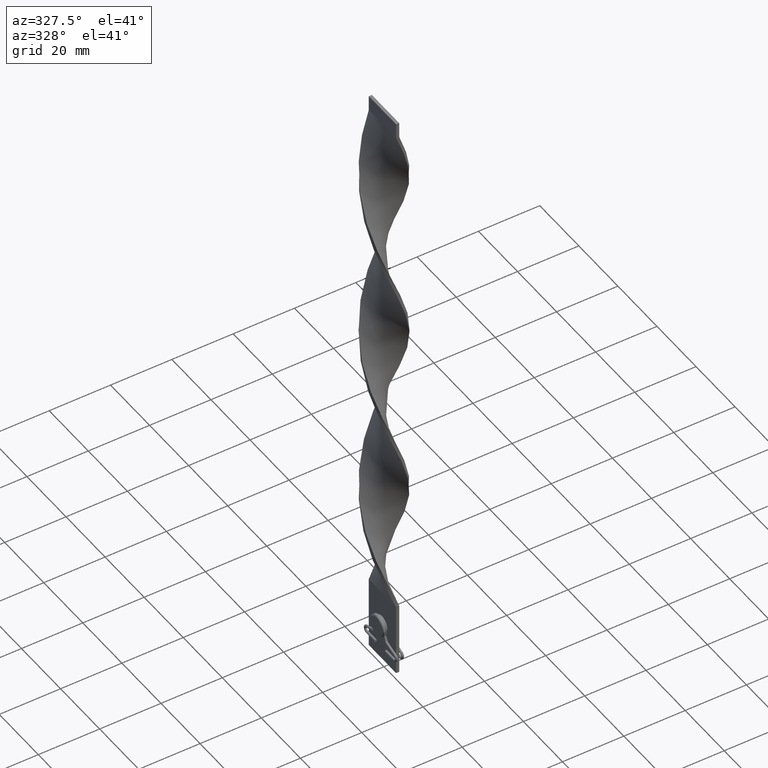
[diagram: clean part render]
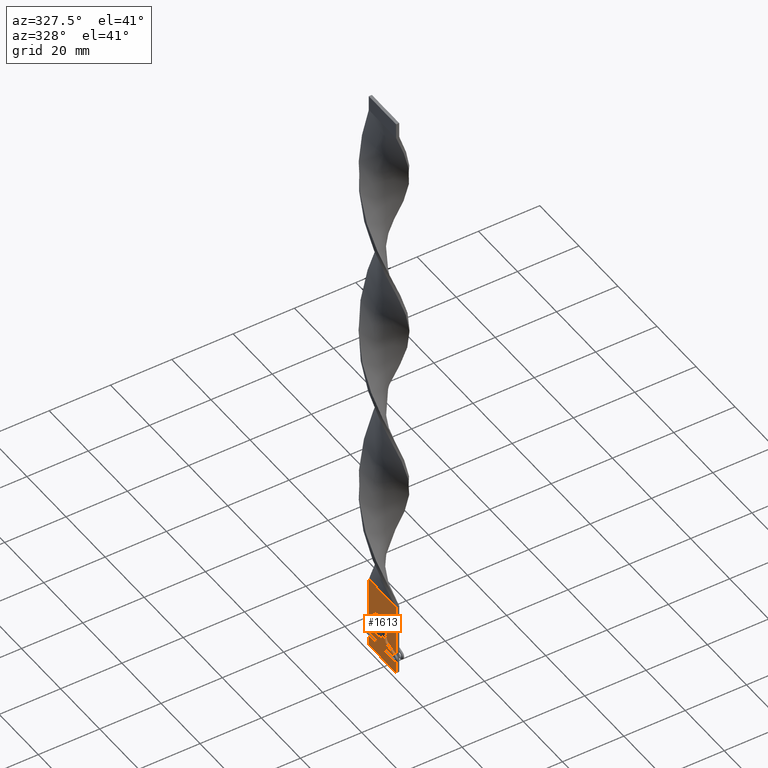
[diagram: same view with one face highlighted and labeled with its STEP entity id]
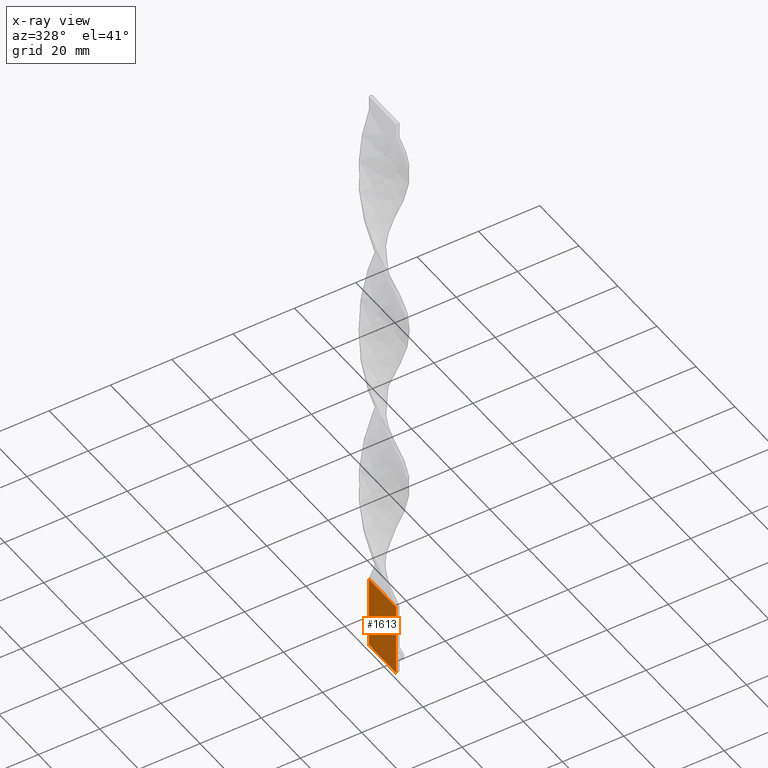
[diagram: x-ray of the same camera — body ghosted, the highlighted face saturated]
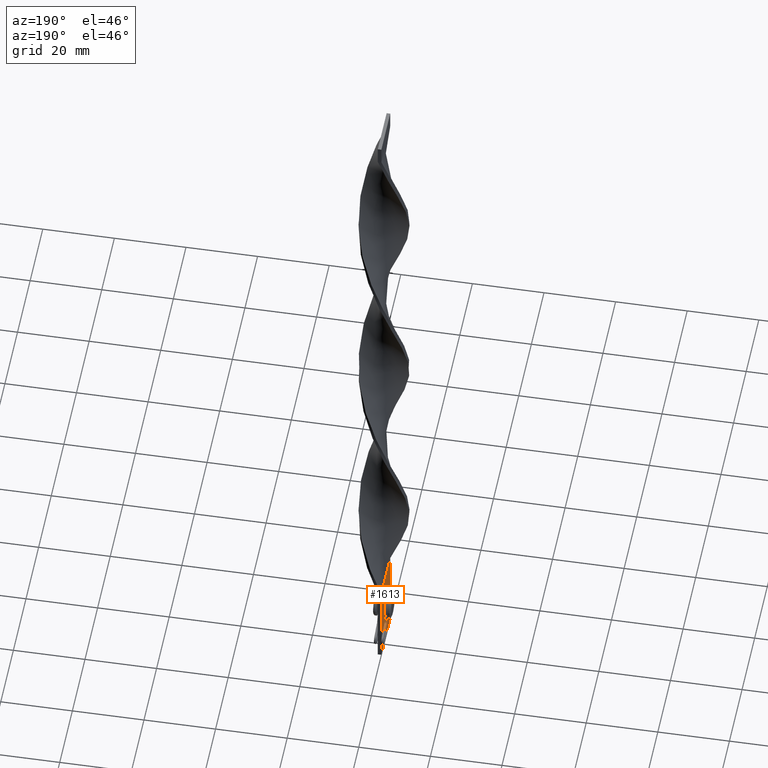
[diagram: same view with one face highlighted and labeled with its STEP entity id]
A machine part, auxiliary view. The second image highlights one B-rep face of the part: STEP entity #1613.
The next image is the same camera in x-ray: the body ghosted, the highlighted face saturated — about 0% of this face is hidden behind the body in this view.
A second angle (auxiliary view) of the same face is appended — the face is thin or edge-on in the first view.
In plain terms, the highlighted planar face has unit normal (1, 0, -0).
Its self-contained STEP definition (entity closure, byte-faithful):
#39 = AXIS2_PLACEMENT_3D ( 'NONE', #3506, #1743, #2853 ) ;
#214 = CARTESIAN_POINT ( 'NONE',  ( -0.5000000000000007772, 7.000000000000000888, 0.000000000000000000 ) ) ;
#235 = CARTESIAN_POINT ( 'NONE',  ( -0.5000000000000007772, 7.000000000000000888, 0.000000000000000000 ) ) ;
#438 = LINE ( 'NONE', #2571, #1664 ) ;
#443 = EDGE_LOOP ( 'NONE', ( #597, #3119 ) ) ;
#525 = EDGE_CURVE ( 'NONE', #1611, #3564, #2703, .T. ) ;
#597 = ORIENTED_EDGE ( 'NONE', *, *, #525, .T. ) ;
#1280 = DIRECTION ( 'NONE',  ( 1.239088197126290817E-16, -1.000000000000000000, 0.000000000000000000 ) ) ;
#1308 = ORIENTED_EDGE ( 'NONE', *, *, #1589, .T. ) ;
#1421 = CARTESIAN_POINT ( 'NONE',  ( -0.4999999999999990563, -6.999999999999999112, 24.00000000000000000 ) ) ;
#1443 = CIRCLE ( 'NONE', #3821, 1.999999999999999556 ) ;
#1492 = DIRECTION ( 'NONE',  ( 1.239088197126290817E-16, -1.000000000000000000, 0.000000000000000000 ) ) ;
#1517 = VECTOR ( 'NONE', #1280, 1000.000000000000000 ) ;
#1541 = DIRECTION ( 'NONE',  ( -0.000000000000000000, -0.000000000000000000, -1.000000000000000000 ) ) ;
#1588 = VERTEX_POINT ( 'NONE', #1636 ) ;
#1589 = EDGE_CURVE ( 'NONE', #2576, #3991, #2380, .T. ) ;
#1611 = VERTEX_POINT ( 'NONE', #3024 ) ;
#1613 = ADVANCED_FACE ( 'NONE', ( #3075, #3802 ), #4451, .F. ) ;
#1636 = CARTESIAN_POINT ( 'NONE',  ( -0.5000000000000007772, 7.000000000000000888, 24.00000000000000000 ) ) ;
#1664 = VECTOR ( 'NONE', #3955, 1000.000000000000000 ) ;
#1669 = VECTOR ( 'NONE', #1492, 1000.000000000000000 ) ;
#1692 = CARTESIAN_POINT ( 'NONE',  ( -0.5000000000000007772, 7.000000000000000888, 24.00000000000000000 ) ) ;
#1743 = DIRECTION ( 'NONE',  ( 1.000000000000000000, -3.794707603699264533E-16, -0.000000000000000000 ) ) ;
#1827 = VECTOR ( 'NONE', #1541, 1000.000000000000000 ) ;
#1913 = EDGE_CURVE ( 'NONE', #1588, #2193, #2334, .T. ) ;
#1931 = EDGE_CURVE ( 'NONE', #2193, #3991, #2933, .T. ) ;
#2081 = EDGE_CURVE ( 'NONE', #3564, #1611, #1443, .T. ) ;
#2193 = VERTEX_POINT ( 'NONE', #1421 ) ;
#2334 = LINE ( 'NONE', #3750, #1669 ) ;
#2380 = LINE ( 'NONE', #235, #1517 ) ;
#2571 = CARTESIAN_POINT ( 'NONE',  ( -0.5000000000000007772, 7.000000000000000888, 24.00000000000000000 ) ) ;
#2576 = VERTEX_POINT ( 'NONE', #214 ) ;
#2678 = DIRECTION ( 'NONE',  ( 1.000000000000000000, 1.239088197126290817E-16, -0.000000000000000000 ) ) ;
#2703 = CIRCLE ( 'NONE', #39, 1.999999999999999556 ) ;
#2853 = DIRECTION ( 'NONE',  ( 3.794707603699266505E-16, 1.000000000000000000, 0.000000000000000000 ) ) ;
#2933 = LINE ( 'NONE', #4360, #1827 ) ;
#2934 = ORIENTED_EDGE ( 'NONE', *, *, #1913, .F. ) ;
#3024 = CARTESIAN_POINT ( 'NONE',  ( -0.5000000000000006661, -1.999999999999999556, 13.00000000000000000 ) ) ;
#3075 = FACE_BOUND ( 'NONE', #443, .T. ) ;
#3119 = ORIENTED_EDGE ( 'NONE', *, *, #2081, .T. ) ;
#3207 = DIRECTION ( 'NONE',  ( 3.794707603699266505E-16, 1.000000000000000000, 0.000000000000000000 ) ) ;
#3230 = AXIS2_PLACEMENT_3D ( 'NONE', #1692, #2678, #3394 ) ;
#3394 = DIRECTION ( 'NONE',  ( -1.239088197126290817E-16, 1.000000000000000000, 0.000000000000000000 ) ) ;
#3506 = CARTESIAN_POINT ( 'NONE',  ( -0.4999999999999998890, 6.195440985631451620E-17, 13.00000000000000000 ) ) ;
#3512 = EDGE_LOOP ( 'NONE', ( #1308, #3874, #2934, #4157 ) ) ;
#3564 = VERTEX_POINT ( 'NONE', #3577 ) ;
#3577 = CARTESIAN_POINT ( 'NONE',  ( -0.4999999999999991673, 1.999999999999999556, 13.00000000000000000 ) ) ;
#3750 = CARTESIAN_POINT ( 'NONE',  ( -0.5000000000000007772, 7.000000000000000888, 24.00000000000000000 ) ) ;
#3802 = FACE_OUTER_BOUND ( 'NONE', #3512, .T. ) ;
#3821 = AXIS2_PLACEMENT_3D ( 'NONE', #3917, #3889, #3207 ) ;
#3874 = ORIENTED_EDGE ( 'NONE', *, *, #1931, .F. ) ;
#3889 = DIRECTION ( 'NONE',  ( 1.000000000000000000, -3.794707603699264533E-16, -0.000000000000000000 ) ) ;
#3917 = CARTESIAN_POINT ( 'NONE',  ( -0.4999999999999998890, 6.195440985631451620E-17, 13.00000000000000000 ) ) ;
#3955 = DIRECTION ( 'NONE',  ( -0.000000000000000000, -0.000000000000000000, -1.000000000000000000 ) ) ;
#3991 = VERTEX_POINT ( 'NONE', #4237 ) ;
#4123 = EDGE_CURVE ( 'NONE', #1588, #2576, #438, .T. ) ;
#4157 = ORIENTED_EDGE ( 'NONE', *, *, #4123, .T. ) ;
#4237 = CARTESIAN_POINT ( 'NONE',  ( -0.4999999999999990563, -6.999999999999999112, 0.000000000000000000 ) ) ;
#4360 = CARTESIAN_POINT ( 'NONE',  ( -0.4999999999999990563, -6.999999999999999112, 24.00000000000000000 ) ) ;
#4451 = PLANE ( 'NONE',  #3230 ) ;